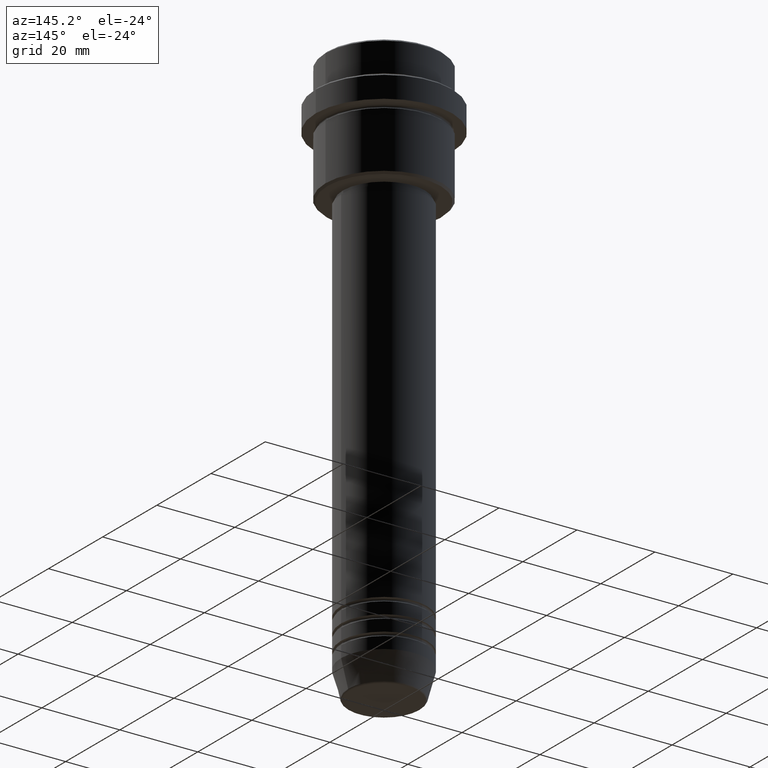
[diagram: clean part render]
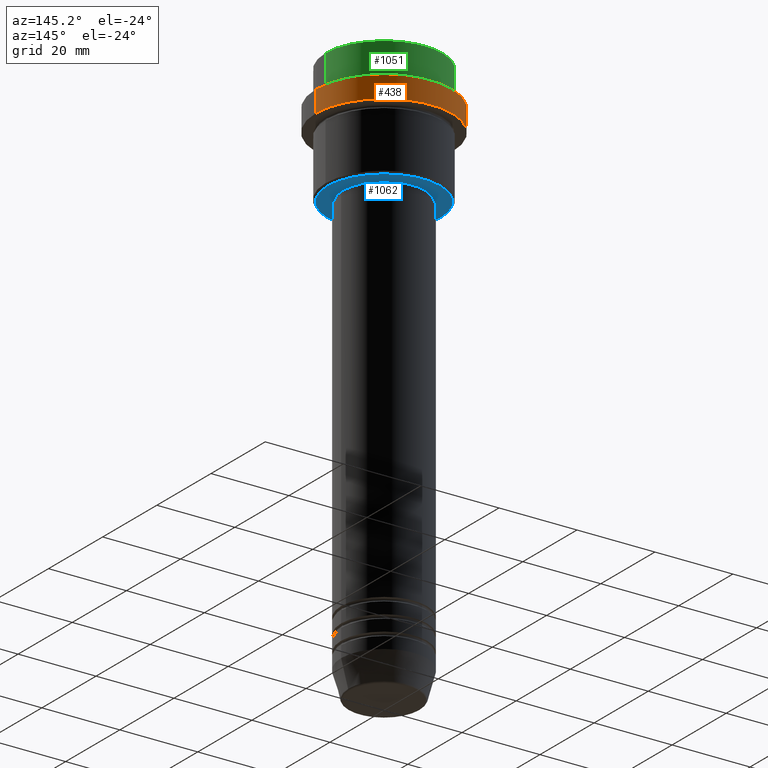
[diagram: same view with three faces highlighted in distinct colors, each labeled with its STEP entity id]
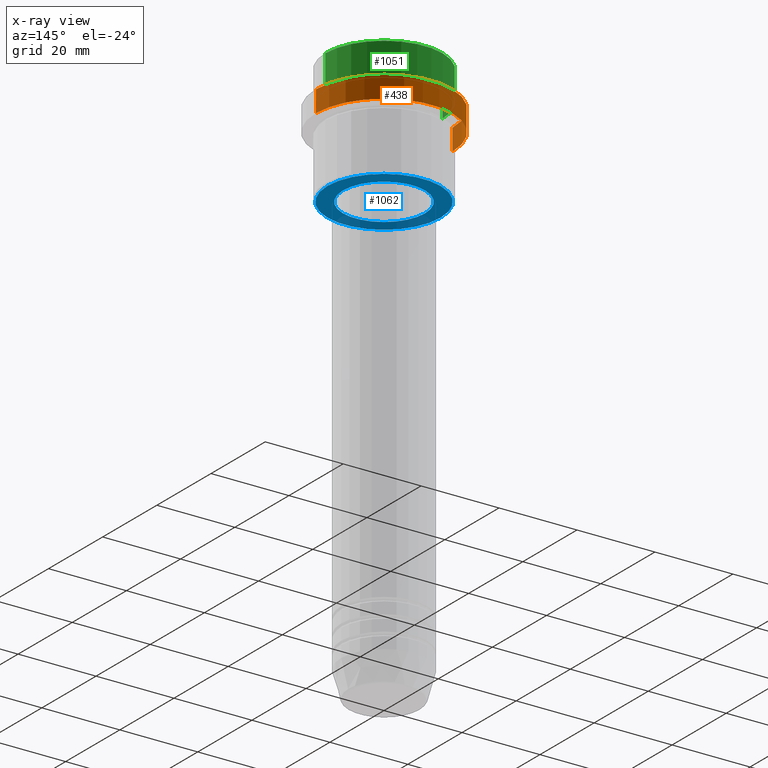
[diagram: x-ray of the same camera — body ghosted, the three highlighted faces saturated]
A machine part, auxiliary view with three faces highlighted in distinct colors.
The next image is the same camera in x-ray (body ghosted, the three faces saturated) — at least one of them is partly hidden behind the body in this view.
Their STEP definitions:

[orange] entity #438 — the highlighted cylindrical surface (partial cylindrical patch) has radius 17.5 mm, axis along (-0, -0, 1).
#13 = LINE ( 'NONE', #800, #1369 ) ;
#26 = CARTESIAN_POINT ( 'NONE',  ( 17.50000000000000000, 0.000000000000000000, -14.99999999999998757 ) ) ;
#44 = ORIENTED_EDGE ( 'NONE', *, *, #1320, .T. ) ;
#45 = ORIENTED_EDGE ( 'NONE', *, *, #1195, .T. ) ;
#89 = CARTESIAN_POINT ( 'NONE',  ( 0.000000000000000000, 0.000000000000000000, -14.99999999999998757 ) ) ;
#100 = VERTEX_POINT ( 'NONE', #392 ) ;
#188 = VERTEX_POINT ( 'NONE', #842 ) ;
#220 = CIRCLE ( 'NONE', #382, 17.50000000000000000 ) ;
#273 = DIRECTION ( 'NONE',  ( 1.000000000000000000, 0.000000000000000000, 0.000000000000000000 ) ) ;
#279 = DIRECTION ( 'NONE',  ( 0.000000000000000000, 0.000000000000000000, -1.000000000000000000 ) ) ;
#351 = LINE ( 'NONE', #809, #454 ) ;
#357 = FACE_OUTER_BOUND ( 'NONE', #522, .T. ) ;
#358 = CIRCLE ( 'NONE', #1388, 17.50000000000000000 ) ;
#382 = AXIS2_PLACEMENT_3D ( 'NONE', #89, #870, #528 ) ;
#392 = CARTESIAN_POINT ( 'NONE',  ( 17.50000000000000000, 0.000000000000000000, -9.499999999999987566 ) ) ;
#434 = VERTEX_POINT ( 'NONE', #572 ) ;
#438 = ADVANCED_FACE ( 'NONE', ( #357 ), #1340, .T. ) ;
#453 = VERTEX_POINT ( 'NONE', #26 ) ;
#454 = VECTOR ( 'NONE', #1232, 1000.000000000000000 ) ;
#520 = ORIENTED_EDGE ( 'NONE', *, *, #1367, .F. ) ;
#522 = EDGE_LOOP ( 'NONE', ( #45, #44, #984, #520 ) ) ;
#528 = DIRECTION ( 'NONE',  ( 1.000000000000000000, 0.000000000000000000, 0.000000000000000000 ) ) ;
#572 = CARTESIAN_POINT ( 'NONE',  ( -17.50000000000000000, 2.143131898507868248E-15, -9.499999999999987566 ) ) ;
#800 = CARTESIAN_POINT ( 'NONE',  ( -17.50000000000000000, 2.143131898507868248E-15, 0.000000000000000000 ) ) ;
#809 = CARTESIAN_POINT ( 'NONE',  ( 17.50000000000000000, 0.000000000000000000, 0.000000000000000000 ) ) ;
#842 = CARTESIAN_POINT ( 'NONE',  ( -17.50000000000000000, 2.143131898507868248E-15, -14.99999999999998757 ) ) ;
#870 = DIRECTION ( 'NONE',  ( -0.000000000000000000, -0.000000000000000000, 1.000000000000000000 ) ) ;
#984 = ORIENTED_EDGE ( 'NONE', *, *, #1047, .T. ) ;
#1006 = DIRECTION ( 'NONE',  ( -0.000000000000000000, -0.000000000000000000, 1.000000000000000000 ) ) ;
#1020 = DIRECTION ( 'NONE',  ( 1.000000000000000000, 0.000000000000000000, 0.000000000000000000 ) ) ;
#1047 = EDGE_CURVE ( 'NONE', #434, #100, #358, .T. ) ;
#1059 = AXIS2_PLACEMENT_3D ( 'NONE', #1236, #1006, #1020 ) ;
#1124 = DIRECTION ( 'NONE',  ( -0.000000000000000000, -0.000000000000000000, 1.000000000000000000 ) ) ;
#1195 = EDGE_CURVE ( 'NONE', #453, #188, #220, .T. ) ;
#1232 = DIRECTION ( 'NONE',  ( -0.000000000000000000, -0.000000000000000000, 1.000000000000000000 ) ) ;
#1236 = CARTESIAN_POINT ( 'NONE',  ( 0.000000000000000000, 0.000000000000000000, 0.000000000000000000 ) ) ;
#1258 = CARTESIAN_POINT ( 'NONE',  ( 0.000000000000000000, 0.000000000000000000, -9.499999999999987566 ) ) ;
#1320 = EDGE_CURVE ( 'NONE', #188, #434, #13, .T. ) ;
#1340 = CYLINDRICAL_SURFACE ( 'NONE', #1059, 17.50000000000000000 ) ;
#1367 = EDGE_CURVE ( 'NONE', #453, #100, #351, .T. ) ;
#1369 = VECTOR ( 'NONE', #1124, 1000.000000000000000 ) ;
#1388 = AXIS2_PLACEMENT_3D ( 'NONE', #1258, #279, #273 ) ;

[blue] entity #1062 — the highlighted planar face has unit normal (0, 0, -1).
#109 = ORIENTED_EDGE ( 'NONE', *, *, #769, .T. ) ;
#122 = AXIS2_PLACEMENT_3D ( 'NONE', #219, #1096, #1085 ) ;
#151 = CARTESIAN_POINT ( 'NONE',  ( -10.49999999999999289, 1.285879139104720042E-15, -30.99999999999999289 ) ) ;
#153 = EDGE_CURVE ( 'NONE', #608, #893, #865, .T. ) ;
#201 = VERTEX_POINT ( 'NONE', #939 ) ;
#219 = CARTESIAN_POINT ( 'NONE',  ( 0.000000000000000000, 0.000000000000000000, -30.99999999999999289 ) ) ;
#254 = CARTESIAN_POINT ( 'NONE',  ( 0.000000000000000000, 0.000000000000000000, -30.99999999999999289 ) ) ;
#271 = CARTESIAN_POINT ( 'NONE',  ( 14.49999999999999822, 0.000000000000000000, -30.99999999999999289 ) ) ;
#308 = FACE_BOUND ( 'NONE', #678, .T. ) ;
#410 = DIRECTION ( 'NONE',  ( 0.000000000000000000, 0.000000000000000000, -1.000000000000000000 ) ) ;
#449 = DIRECTION ( 'NONE',  ( 0.000000000000000000, 0.000000000000000000, -1.000000000000000000 ) ) ;
#473 = CARTESIAN_POINT ( 'NONE',  ( -14.49999999999999822, 1.806354028742345802E-15, -30.99999999999999289 ) ) ;
#494 = CIRCLE ( 'NONE', #1091, 14.49999999999999822 ) ;
#502 = CARTESIAN_POINT ( 'NONE',  ( 0.000000000000000000, 0.000000000000000000, -30.99999999999999289 ) ) ;
#567 = CIRCLE ( 'NONE', #122, 10.49999999999999289 ) ;
#591 = AXIS2_PLACEMENT_3D ( 'NONE', #254, #598, #913 ) ;
#598 = DIRECTION ( 'NONE',  ( -0.000000000000000000, -0.000000000000000000, 1.000000000000000000 ) ) ;
#608 = VERTEX_POINT ( 'NONE', #271 ) ;
#619 = FACE_OUTER_BOUND ( 'NONE', #989, .T. ) ;
#621 = DIRECTION ( 'NONE',  ( -1.000000000000000000, 0.000000000000000000, 0.000000000000000000 ) ) ;
#659 = ORIENTED_EDGE ( 'NONE', *, *, #1217, .T. ) ;
#667 = PLANE ( 'NONE',  #971 ) ;
#678 = EDGE_LOOP ( 'NONE', ( #109, #1090 ) ) ;
#769 = EDGE_CURVE ( 'NONE', #201, #1378, #567, .T. ) ;
#784 = CARTESIAN_POINT ( 'NONE',  ( 0.000000000000000000, 15.00000000000000000, -30.99999999999999289 ) ) ;
#801 = EDGE_CURVE ( 'NONE', #1378, #201, #846, .T. ) ;
#846 = CIRCLE ( 'NONE', #591, 10.49999999999999289 ) ;
#865 = CIRCLE ( 'NONE', #1036, 14.49999999999999822 ) ;
#893 = VERTEX_POINT ( 'NONE', #473 ) ;
#913 = DIRECTION ( 'NONE',  ( 1.000000000000000000, 0.000000000000000000, 0.000000000000000000 ) ) ;
#939 = CARTESIAN_POINT ( 'NONE',  ( 10.49999999999999289, 0.000000000000000000, -30.99999999999999289 ) ) ;
#971 = AXIS2_PLACEMENT_3D ( 'NONE', #784, #410, #1312 ) ;
#989 = EDGE_LOOP ( 'NONE', ( #1386, #659 ) ) ;
#1036 = AXIS2_PLACEMENT_3D ( 'NONE', #502, #1054, #621 ) ;
#1054 = DIRECTION ( 'NONE',  ( 0.000000000000000000, 0.000000000000000000, -1.000000000000000000 ) ) ;
#1062 = ADVANCED_FACE ( 'NONE', ( #619, #308 ), #667, .T. ) ;
#1085 = DIRECTION ( 'NONE',  ( 1.000000000000000000, 0.000000000000000000, 0.000000000000000000 ) ) ;
#1090 = ORIENTED_EDGE ( 'NONE', *, *, #801, .T. ) ;
#1091 = AXIS2_PLACEMENT_3D ( 'NONE', #1347, #449, #1223 ) ;
#1096 = DIRECTION ( 'NONE',  ( -0.000000000000000000, -0.000000000000000000, 1.000000000000000000 ) ) ;
#1217 = EDGE_CURVE ( 'NONE', #893, #608, #494, .T. ) ;
#1223 = DIRECTION ( 'NONE',  ( -1.000000000000000000, 0.000000000000000000, 0.000000000000000000 ) ) ;
#1312 = DIRECTION ( 'NONE',  ( -1.000000000000000000, 0.000000000000000000, -0.000000000000000000 ) ) ;
#1347 = CARTESIAN_POINT ( 'NONE',  ( 0.000000000000000000, 0.000000000000000000, -30.99999999999999289 ) ) ;
#1378 = VERTEX_POINT ( 'NONE', #151 ) ;
#1386 = ORIENTED_EDGE ( 'NONE', *, *, #153, .T. ) ;

[green] entity #1051 — the highlighted cylindrical surface (partial cylindrical patch) has radius 15 mm, axis along (-0, -0, 1).
#1 = CARTESIAN_POINT ( 'NONE',  ( -15.00000000000000000, 1.836970198721029589E-15, -0.4999999999999970024 ) ) ;
#42 = DIRECTION ( 'NONE',  ( 0.000000000000000000, 0.000000000000000000, -1.000000000000000000 ) ) ;
#170 = CIRCLE ( 'NONE', #1346, 15.00000000000000000 ) ;
#194 = CARTESIAN_POINT ( 'NONE',  ( -15.00000000000000000, 1.836970198721029589E-15, 0.000000000000000000 ) ) ;
#223 = ORIENTED_EDGE ( 'NONE', *, *, #649, .F. ) ;
#258 = CARTESIAN_POINT ( 'NONE',  ( 0.000000000000000000, 0.000000000000000000, -7.999999999999998224 ) ) ;
#319 = LINE ( 'NONE', #194, #1205 ) ;
#328 = VERTEX_POINT ( 'NONE', #1 ) ;
#375 = DIRECTION ( 'NONE',  ( -0.000000000000000000, -0.000000000000000000, 1.000000000000000000 ) ) ;
#389 = CYLINDRICAL_SURFACE ( 'NONE', #811, 15.00000000000000000 ) ;
#394 = CARTESIAN_POINT ( 'NONE',  ( -15.00000000000000000, 1.836970198721029589E-15, -7.999999999999998224 ) ) ;
#428 = CIRCLE ( 'NONE', #515, 15.00000000000000000 ) ;
#479 = CARTESIAN_POINT ( 'NONE',  ( 15.00000000000000000, 0.000000000000000000, -7.999999999999998224 ) ) ;
#515 = AXIS2_PLACEMENT_3D ( 'NONE', #1224, #42, #1018 ) ;
#547 = VERTEX_POINT ( 'NONE', #743 ) ;
#558 = DIRECTION ( 'NONE',  ( -0.000000000000000000, -0.000000000000000000, 1.000000000000000000 ) ) ;
#601 = VERTEX_POINT ( 'NONE', #394 ) ;
#613 = EDGE_LOOP ( 'NONE', ( #684, #1105, #1274, #223 ) ) ;
#649 = EDGE_CURVE ( 'NONE', #1333, #547, #1182, .T. ) ;
#674 = EDGE_CURVE ( 'NONE', #601, #328, #319, .T. ) ;
#684 = ORIENTED_EDGE ( 'NONE', *, *, #1382, .T. ) ;
#726 = DIRECTION ( 'NONE',  ( 1.000000000000000000, 0.000000000000000000, 0.000000000000000000 ) ) ;
#743 = CARTESIAN_POINT ( 'NONE',  ( 15.00000000000000000, 0.000000000000000000, -0.4999999999999970024 ) ) ;
#811 = AXIS2_PLACEMENT_3D ( 'NONE', #838, #1263, #726 ) ;
#838 = CARTESIAN_POINT ( 'NONE',  ( 0.000000000000000000, 0.000000000000000000, 0.000000000000000000 ) ) ;
#840 = EDGE_CURVE ( 'NONE', #328, #547, #428, .T. ) ;
#871 = CARTESIAN_POINT ( 'NONE',  ( 15.00000000000000000, 0.000000000000000000, 0.000000000000000000 ) ) ;
#1018 = DIRECTION ( 'NONE',  ( 1.000000000000000000, 0.000000000000000000, 0.000000000000000000 ) ) ;
#1031 = DIRECTION ( 'NONE',  ( 1.000000000000000000, 0.000000000000000000, 0.000000000000000000 ) ) ;
#1051 = ADVANCED_FACE ( 'NONE', ( #1148 ), #389, .T. ) ;
#1105 = ORIENTED_EDGE ( 'NONE', *, *, #674, .T. ) ;
#1115 = VECTOR ( 'NONE', #558, 1000.000000000000000 ) ;
#1148 = FACE_OUTER_BOUND ( 'NONE', #613, .T. ) ;
#1182 = LINE ( 'NONE', #871, #1115 ) ;
#1205 = VECTOR ( 'NONE', #1412, 1000.000000000000000 ) ;
#1224 = CARTESIAN_POINT ( 'NONE',  ( 0.000000000000000000, 0.000000000000000000, -0.4999999999999970024 ) ) ;
#1263 = DIRECTION ( 'NONE',  ( -0.000000000000000000, -0.000000000000000000, 1.000000000000000000 ) ) ;
#1274 = ORIENTED_EDGE ( 'NONE', *, *, #840, .T. ) ;
#1333 = VERTEX_POINT ( 'NONE', #479 ) ;
#1346 = AXIS2_PLACEMENT_3D ( 'NONE', #258, #375, #1031 ) ;
#1382 = EDGE_CURVE ( 'NONE', #1333, #601, #170, .T. ) ;
#1412 = DIRECTION ( 'NONE',  ( -0.000000000000000000, -0.000000000000000000, 1.000000000000000000 ) ) ;